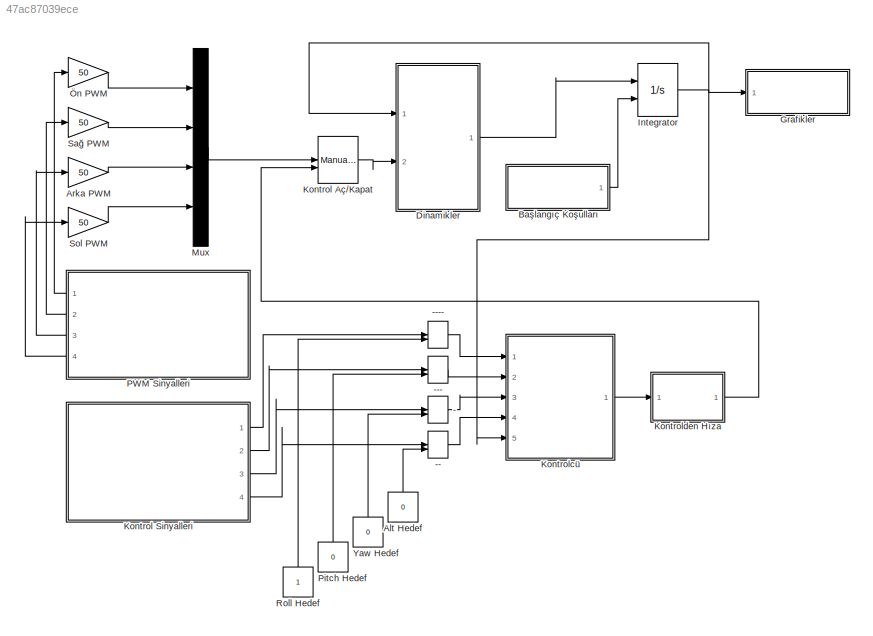
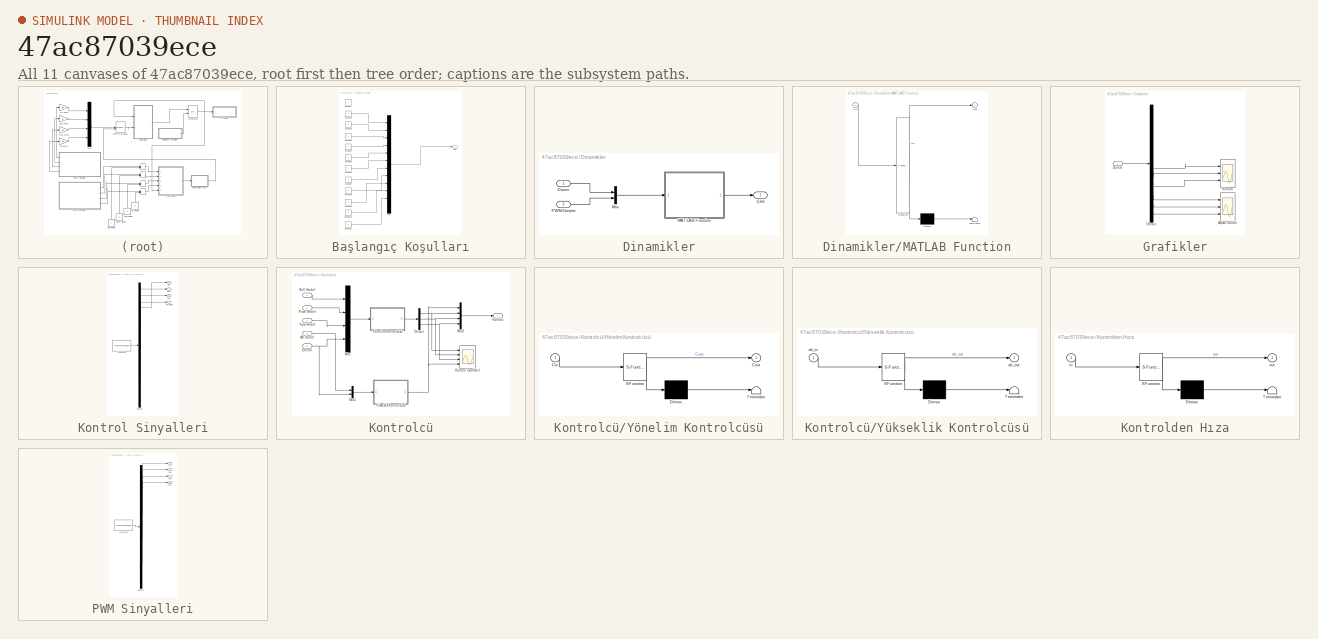
[diagram: thumbnail index - all 11 canvases of the model, root first then tree order]
MODEL slx_47ac87039ece
KIND model
BLOCK [ManualSwitch] -
BLOCK [ManualSwitch] --
BLOCK [ManualSwitch] ---
BLOCK [ManualSwitch] ----
BLOCK [Constant] Alt Hedef
  Value = 0
BLOCK [Gain] Arka PWM
  Gain = 50
  OutDataTypeStr = Inherit: Inherit via internal rule
  ParamDataTypeStr = Inherit: Inherit via internal rule
  SaturateOnIntegerOverflow = off
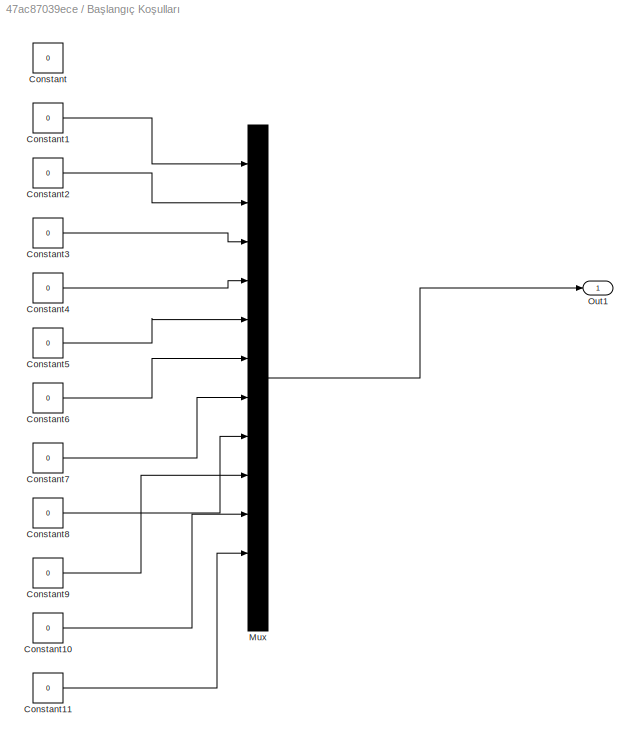
BLOCK [SubSystem] Başlangıç Koşulları
  FunctionWithSeparateData = off
  MaskHideContents = off
  MinAlgLoopOccurrences = off
  Opaque = off
  Ports = [0, 1]
  PropExecContextOutsideSubsystem = off
  RTWSystemCode = Auto
  RequestExecContextInheritance = off
BLOCK [Constant] Başlangıç Koşulları/Constant
  Value = 0
BLOCK [Constant] Başlangıç Koşulları/Constant1
  Value = 0
BLOCK [Constant] Başlangıç Koşulları/Constant10
  Value = 0
BLOCK [Constant] Başlangıç Koşulları/Constant11
  Value = 0
BLOCK [Constant] Başlangıç Koşulları/Constant2
  Value = 0
BLOCK [Constant] Başlangıç Koşulları/Constant3
  Value = 0
BLOCK [Constant] Başlangıç Koşulları/Constant4
  Value = 0
BLOCK [Constant] Başlangıç Koşulları/Constant5
  Value = 0
BLOCK [Constant] Başlangıç Koşulları/Constant6
  Value = 0
BLOCK [Constant] Başlangıç Koşulları/Constant7
  Value = 0
BLOCK [Constant] Başlangıç Koşulları/Constant8
  Value = 0
BLOCK [Constant] Başlangıç Koşulları/Constant9
  Value = 0
BLOCK [Mux] Başlangıç Koşulları/Mux
  DisplayOption = bar
  Inputs = 12
  Ports = [12, 1]
BLOCK [Outport] Başlangıç Koşulları/Out1
  IconDisplay = Port number
BLOCK [SubSystem] Dinamikler
  FunctionWithSeparateData = off
  MaskHideContents = off
  MinAlgLoopOccurrences = off
  Opaque = off
  Ports = [2, 1]
  PropExecContextOutsideSubsystem = off
  RTWSystemCode = Auto
  RequestExecContextInheritance = off
BLOCK [Inport] Dinamikler/Durum
  IconDisplay = Port number
BLOCK [SubSystem] Dinamikler/MATLAB Function
  ErrorFcn = Stateflow.Translate.translate
  FunctionWithSeparateData = off
  MaskHideContents = off
  MinAlgLoopOccurrences = off
  Opaque = off
  PermitHierarchicalResolution = ExplicitOnly
  Ports = [1, 1]
  PropExecContextOutsideSubsystem = off
  RTWSystemCode = Auto
  RequestExecContextInheritance = off
  SFBlockType = MATLAB Function
  TreatAsAtomicUnit = on
BLOCK [Demux] Dinamikler/MATLAB Function/ Demux 
  Outputs = 1
  Ports = [1, 1]
BLOCK [S-Function] Dinamikler/MATLAB Function/ SFunction 
  EnableBusSupport = on
  FunctionName = sf_sfun
  PortCounts = [1 2]
  Ports = [1, 2]
  Tag = Stateflow S-Function Quadsim 2
BLOCK [Terminator] Dinamikler/MATLAB Function/ Terminator 
BLOCK [Inport] Dinamikler/MATLAB Function/Xin
  IconDisplay = Port number
BLOCK [Outport] Dinamikler/MATLAB Function/Xout
  IconDisplay = Port number
BLOCK [Mux] Dinamikler/Mux
  DisplayOption = bar
  Inputs = 2
  Ports = [2, 1]
BLOCK [Inport] Dinamikler/PWM Girişleri
  IconDisplay = Port number
  Port = 2
BLOCK [Outport] Dinamikler/Çıktı
  IconDisplay = Port number
BLOCK [SubSystem] Grafikler
  FunctionWithSeparateData = off
  MaskHideContents = off
  MinAlgLoopOccurrences = off
  Opaque = off
  Ports = [1]
  PropExecContextOutsideSubsystem = off
  RTWSystemCode = Auto
  RequestExecContextInheritance = off
BLOCK [Scope] Grafikler/Açısal Durum
  DataFormat = StructureWithTime
  Floating = off
  MaxDataPoints = 10000
  NumInputPorts = 3
  Ports = [3]
  SampleTime = 0
  ShowLegends = off
  YMax = 1920~1~0.455
  YMin = 1790~-1~0.43
BLOCK [Demux] Grafikler/Demux
  DisplayOption = bar
  Outputs = 12
  Ports = [1, 12]
BLOCK [Inport] Grafikler/Durum
  IconDisplay = Port number
BLOCK [Scope] Grafikler/Konum
  DataFormat = StructureWithTime
  Floating = off
  NumInputPorts = 3
  Ports = [3]
  SampleTime = 0
  SaveName = ScopeData1
  ShowLegends = off
  YMax = 5~5~5
  YMin = -5~-5~-5
BLOCK [Integrator] Integrator
  InitialConditionSource = external
  Ports = [2, 1]
BLOCK [ManualSwitch] Kontrol Aç//Kapat
  CurrentSetting = 0
BLOCK [SubSystem] Kontrol Sinyalleri
  ClipboardFcn = sigbuilder_block('clipboard');
  CloseFcn = sigbuilder_block('close');
  ContinueFcn = sigbuilder_block('continue');
  CopyFcn = sigbuilder_block('copy');
  DeleteFcn = sigbuilder_block('delete');
  FunctionWithSeparateData = off
  LoadFcn = sigbuilder_block('load');
  MaskHideContents = on
  MinAlgLoopOccurrences = off
  ModelCloseFcn = sigbuilder_block('modelClose');
  NameChangeFcn = sigbuilder_block('namechange');
  Opaque = off
  OpenFcn = sigbuilder_block('open',[6 31.5 1012.5 481.5 ]);
  PauseFcn = sigbuilder_block('pause');
  Ports = [0, 4]
  PreSaveFcn = sigbuilder_block('preSave');
  PropExecContextOutsideSubsystem = off
  RTWSystemCode = Auto
  RequestExecContextInheritance = off
  StartFcn = sigbuilder_block('start');
  StopFcn = sigbuilder_block('stop');
  Tag = STV Subsys
BLOCK [Demux] Kontrol Sinyalleri/Demux
  Ports = [1, 4]
  Tag = STV Demux
BLOCK [FromWorkspace] Kontrol Sinyalleri/FromWs
  SampleTime = 0
  Tag = STV FromWs
  VariableName = tuvar
  ZeroCross = on
BLOCK [Outport] Kontrol Sinyalleri/Pitch
  IconDisplay = Port number
  Port = 2
  Tag = STV Outport
BLOCK [Outport] Kontrol Sinyalleri/Roll
  IconDisplay = Port number
  Tag = STV Outport
BLOCK [Outport] Kontrol Sinyalleri/Yaw
  IconDisplay = Port number
  Port = 3
  Tag = STV Outport
BLOCK [Outport] Kontrol Sinyalleri/Yükseklik
  IconDisplay = Port number
  Port = 4
  Tag = STV Outport
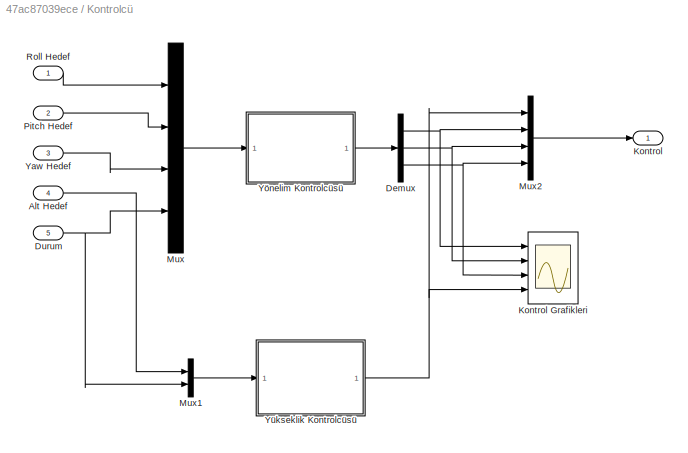
BLOCK [SubSystem] Kontrolcü
  FunctionWithSeparateData = off
  MaskHideContents = off
  MinAlgLoopOccurrences = off
  Opaque = off
  Ports = [5, 1]
  PropExecContextOutsideSubsystem = off
  RTWSystemCode = Auto
  RequestExecContextInheritance = off
BLOCK [Inport] Kontrolcü/Alt Hedef
  IconDisplay = Port number
  Port = 4
BLOCK [Demux] Kontrolcü/Demux
  DisplayOption = bar
  Outputs = 3
  Ports = [1, 3]
BLOCK [Inport] Kontrolcü/Durum
  IconDisplay = Port number
  Port = 5
BLOCK [Outport] Kontrolcü/Kontrol
  IconDisplay = Port number
BLOCK [Scope] Kontrolcü/Kontrol Grafikleri
  DataFormat = StructureWithTime
  Floating = off
  NumInputPorts = 4
  Ports = [4]
  SampleTime = 0
  SaveName = ScopeData2
  ShowLegends = off
  YMax = 100~1~0~120
  YMin = -1200~-1~-9~-10
  ZoomMode = xonly
BLOCK [Mux] Kontrolcü/Mux
  DisplayOption = bar
  Ports = [4, 1]
BLOCK [Mux] Kontrolcü/Mux1
  DisplayOption = bar
  Inputs = 2
  Ports = [2, 1]
BLOCK [Mux] Kontrolcü/Mux2
  DisplayOption = bar
  Ports = [4, 1]
BLOCK [Inport] Kontrolcü/Pitch Hedef
  IconDisplay = Port number
  Port = 2
BLOCK [Inport] Kontrolcü/Roll Hedef
  IconDisplay = Port number
BLOCK [Inport] Kontrolcü/Yaw Hedef
  IconDisplay = Port number
  Port = 3
BLOCK [SubSystem] Kontrolcü/Yönelim Kontrolcüsü
  ErrorFcn = Stateflow.Translate.translate
  FunctionWithSeparateData = off
  MaskHideContents = off
  MinAlgLoopOccurrences = off
  Opaque = off
  PermitHierarchicalResolution = ExplicitOnly
  Ports = [1, 1]
  PropExecContextOutsideSubsystem = off
  RTWSystemCode = Auto
  RequestExecContextInheritance = off
  SFBlockType = MATLAB Function
  TreatAsAtomicUnit = on
BLOCK [Demux] Kontrolcü/Yönelim Kontrolcüsü/ Demux 
  Outputs = 1
  Ports = [1, 1]
BLOCK [S-Function] Kontrolcü/Yönelim Kontrolcüsü/ SFunction 
  EnableBusSupport = on
  FunctionName = sf_sfun
  PortCounts = [1 2]
  Ports = [1, 2]
  Tag = Stateflow S-Function Quadsim 1
BLOCK [Terminator] Kontrolcü/Yönelim Kontrolcüsü/ Terminator 
BLOCK [Inport] Kontrolcü/Yönelim Kontrolcüsü/Cin
  IconDisplay = Port number
BLOCK [Outport] Kontrolcü/Yönelim Kontrolcüsü/Cout
  IconDisplay = Port number
BLOCK [SubSystem] Kontrolcü/Yükseklik Kontrolcüsü
  ErrorFcn = Stateflow.Translate.translate
  FunctionWithSeparateData = off
  MaskHideContents = off
  MinAlgLoopOccurrences = off
  Opaque = off
  PermitHierarchicalResolution = ExplicitOnly
  Ports = [1, 1]
  PropExecContextOutsideSubsystem = off
  RTWSystemCode = Auto
  RequestExecContextInheritance = off
  SFBlockType = MATLAB Function
  TreatAsAtomicUnit = on
BLOCK [Demux] Kontrolcü/Yükseklik Kontrolcüsü/ Demux 
  Outputs = 1
  Ports = [1, 1]
BLOCK [S-Function] Kontrolcü/Yükseklik Kontrolcüsü/ SFunction 
  EnableBusSupport = on
  FunctionName = sf_sfun
  PortCounts = [1 2]
  Ports = [1, 2]
  Tag = Stateflow S-Function Quadsim 3
BLOCK [Terminator] Kontrolcü/Yükseklik Kontrolcüsü/ Terminator 
BLOCK [Inport] Kontrolcü/Yükseklik Kontrolcüsü/alt_in
  IconDisplay = Port number
BLOCK [Outport] Kontrolcü/Yükseklik Kontrolcüsü/alt_out
  IconDisplay = Port number
BLOCK [SubSystem] Kontrolden Hıza
  ErrorFcn = Stateflow.Translate.translate
  FunctionWithSeparateData = off
  MaskHideContents = off
  MinAlgLoopOccurrences = off
  Opaque = off
  PermitHierarchicalResolution = ExplicitOnly
  Ports = [1, 1]
  PropExecContextOutsideSubsystem = off
  RTWSystemCode = Auto
  RequestExecContextInheritance = off
  SFBlockType = MATLAB Function
  TreatAsAtomicUnit = on
BLOCK [Demux] Kontrolden Hıza/ Demux 
  Outputs = 1
  Ports = [1, 1]
BLOCK [S-Function] Kontrolden Hıza/ SFunction 
  EnableBusSupport = on
  FunctionName = sf_sfun
  PortCounts = [1 2]
  Ports = [1, 2]
  Tag = Stateflow S-Function Quadsim 4
BLOCK [Terminator] Kontrolden Hıza/ Terminator 
BLOCK [Inport] Kontrolden Hıza/in
  IconDisplay = Port number
BLOCK [Outport] Kontrolden Hıza/out
  IconDisplay = Port number
BLOCK [Mux] Mux
  DisplayOption = bar
  Ports = [4, 1]
BLOCK [SubSystem] PWM Sinyalleri
  ClipboardFcn = sigbuilder_block('clipboard');
  CloseFcn = sigbuilder_block('close');
  ContinueFcn = sigbuilder_block('continue');
  CopyFcn = sigbuilder_block('copy');
  DeleteFcn = sigbuilder_block('delete');
  FunctionWithSeparateData = off
  LoadFcn = sigbuilder_block('load');
  MaskHideContents = on
  MinAlgLoopOccurrences = off
  ModelCloseFcn = sigbuilder_block('modelClose');
  NameChangeFcn = sigbuilder_block('namechange');
  Opaque = off
  OpenFcn = sigbuilder_block('open',[6 28.5 1012.5 484.5 ]);
  PauseFcn = sigbuilder_block('pause');
  Ports = [0, 4]
  PreSaveFcn = sigbuilder_block('preSave');
  PropExecContextOutsideSubsystem = off
  RTWSystemCode = Auto
  RequestExecContextInheritance = off
  StartFcn = sigbuilder_block('start');
  StopFcn = sigbuilder_block('stop');
  Tag = STV Subsys
BLOCK [Outport] PWM Sinyalleri/Arka
  IconDisplay = Port number
  Port = 3
  Tag = STV Outport
BLOCK [Demux] PWM Sinyalleri/Demux
  Ports = [1, 4]
  Tag = STV Demux
BLOCK [FromWorkspace] PWM Sinyalleri/FromWs
  SampleTime = 0
  Tag = STV FromWs
  VariableName = tuvar
  ZeroCross = on
BLOCK [Outport] PWM Sinyalleri/Sağ
  IconDisplay = Port number
  Port = 2
  Tag = STV Outport
BLOCK [Outport] PWM Sinyalleri/Sol
  IconDisplay = Port number
  Port = 4
  Tag = STV Outport
BLOCK [Outport] PWM Sinyalleri/Ön
  IconDisplay = Port number
  Tag = STV Outport
BLOCK [Constant] Pitch Hedef
  Value = 0
BLOCK [Constant] Roll Hedef
BLOCK [Gain] Sağ PWM
  Gain = 50
  OutDataTypeStr = Inherit: Inherit via internal rule
  ParamDataTypeStr = Inherit: Inherit via internal rule
  SaturateOnIntegerOverflow = off
BLOCK [Gain] Sol PWM
  Gain = 50
  OutDataTypeStr = Inherit: Inherit via internal rule
  ParamDataTypeStr = Inherit: Inherit via internal rule
  SaturateOnIntegerOverflow = off
BLOCK [Constant] Yaw Hedef
  Value = 0
BLOCK [Gain] Ön PWM
  Gain = 50
  OutDataTypeStr = Inherit: Inherit via internal rule
  ParamDataTypeStr = Inherit: Inherit via internal rule
  SaturateOnIntegerOverflow = off
LINE ----:1 -> Kontrolcü:1
LINE ---:1 -> Kontrolcü:2
LINE --:1 -> Kontrolcü:4
LINE -:1 -> Kontrolcü:3
LINE Alt Hedef:1 -> --:2
LINE Arka PWM:1 -> Mux:3
LINE Başlangıç Koşulları/Constant10:1 -> Başlangıç Koşulları/Mux:10
LINE Başlangıç Koşulları/Constant11:1 -> Başlangıç Koşulları/Mux:11
LINE Başlangıç Koşulları/Constant1:1 -> Başlangıç Koşulları/Mux:1
LINE Başlangıç Koşulları/Constant2:1 -> Başlangıç Koşulları/Mux:2
LINE Başlangıç Koşulları/Constant3:1 -> Başlangıç Koşulları/Mux:3
LINE Başlangıç Koşulları/Constant4:1 -> Başlangıç Koşulları/Mux:4
LINE Başlangıç Koşulları/Constant5:1 -> Başlangıç Koşulları/Mux:5
LINE Başlangıç Koşulları/Constant6:1 -> Başlangıç Koşulları/Mux:6
LINE Başlangıç Koşulları/Constant7:1 -> Başlangıç Koşulları/Mux:7
LINE Başlangıç Koşulları/Constant8:1 -> Başlangıç Koşulları/Mux:8
LINE Başlangıç Koşulları/Constant9:1 -> Başlangıç Koşulları/Mux:9
LINE Başlangıç Koşulları/Mux:1 -> Başlangıç Koşulları/Out1:1
LINE Başlangıç Koşulları:1 -> Integrator:2
LINE Dinamikler/Durum:1 -> Dinamikler/Mux:1
LINE Dinamikler/MATLAB Function:1 -> Dinamikler/Çıktı:1
LINE Dinamikler/Mux:1 -> Dinamikler/MATLAB Function:1
LINE Dinamikler/PWM Girişleri:1 -> Dinamikler/Mux:2
LINE Dinamikler:1 -> Integrator:1
LINE Grafikler/Demux:10 -> Grafikler/Açısal Durum:1
LINE Grafikler/Demux:11 -> Grafikler/Açısal Durum:2
LINE Grafikler/Demux:12 -> Grafikler/Açısal Durum:3
LINE Grafikler/Demux:7 -> Grafikler/Konum:1
LINE Grafikler/Demux:8 -> Grafikler/Konum:2
LINE Grafikler/Demux:9 -> Grafikler/Konum:3
LINE Grafikler/Durum:1 -> Grafikler/Demux:1
NET Integrator:1 -> Dinamikler:1, Grafikler:1, Kontrolcü:5
LINE Kontrol Aç//Kapat:1 -> Dinamikler:2
LINE Kontrol Sinyalleri:1 -> ----:1
LINE Kontrol Sinyalleri:2 -> ---:1
LINE Kontrol Sinyalleri:3 -> -:1
LINE Kontrol Sinyalleri:4 -> --:1
LINE Kontrolcü/Alt Hedef:1 -> Kontrolcü/Mux1:1
NET Kontrolcü/Demux:1 -> Kontrolcü/Kontrol Grafikleri:1, Kontrolcü/Mux2:2
NET Kontrolcü/Demux:2 -> Kontrolcü/Kontrol Grafikleri:2, Kontrolcü/Mux2:3
NET Kontrolcü/Demux:3 -> Kontrolcü/Kontrol Grafikleri:3, Kontrolcü/Mux2:4
NET Kontrolcü/Durum:1 -> Kontrolcü/Mux1:2, Kontrolcü/Mux:4
LINE Kontrolcü/Mux1:1 -> Kontrolcü/Yükseklik Kontrolcüsü:1
LINE Kontrolcü/Mux2:1 -> Kontrolcü/Kontrol:1
LINE Kontrolcü/Mux:1 -> Kontrolcü/Yönelim Kontrolcüsü:1
LINE Kontrolcü/Pitch Hedef:1 -> Kontrolcü/Mux:2
LINE Kontrolcü/Roll Hedef:1 -> Kontrolcü/Mux:1
LINE Kontrolcü/Yaw Hedef:1 -> Kontrolcü/Mux:3
LINE Kontrolcü/Yönelim Kontrolcüsü:1 -> Kontrolcü/Demux:1
NET Kontrolcü/Yükseklik Kontrolcüsü:1 -> Kontrolcü/Kontrol Grafikleri:4, Kontrolcü/Mux2:1
LINE Kontrolcü:1 -> Kontrolden Hıza:1
LINE Kontrolden Hıza:1 -> Kontrol Aç//Kapat:2
LINE Mux:1 -> Kontrol Aç//Kapat:1
LINE PWM Sinyalleri:1 -> Ön PWM:1
LINE PWM Sinyalleri:2 -> Sağ PWM:1
LINE PWM Sinyalleri:3 -> Arka PWM:1
LINE PWM Sinyalleri:4 -> Sol PWM:1
LINE Pitch Hedef:1 -> ---:2
LINE Roll Hedef:1 -> ----:2
LINE Sağ PWM:1 -> Mux:2
LINE Sol PWM:1 -> Mux:4
LINE Yaw Hedef:1 -> -:2
LINE Ön PWM:1 -> Mux:1
note: NET lines group one-source signal fan-out (src -> all destinations, sorted); 1:1 wires keep LINE
